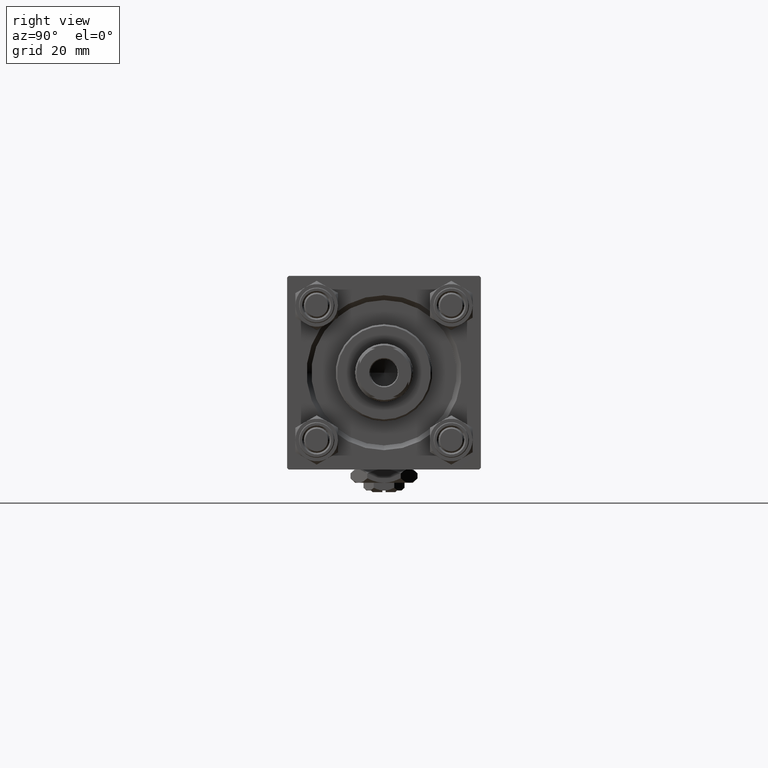
[diagram: clean part render]
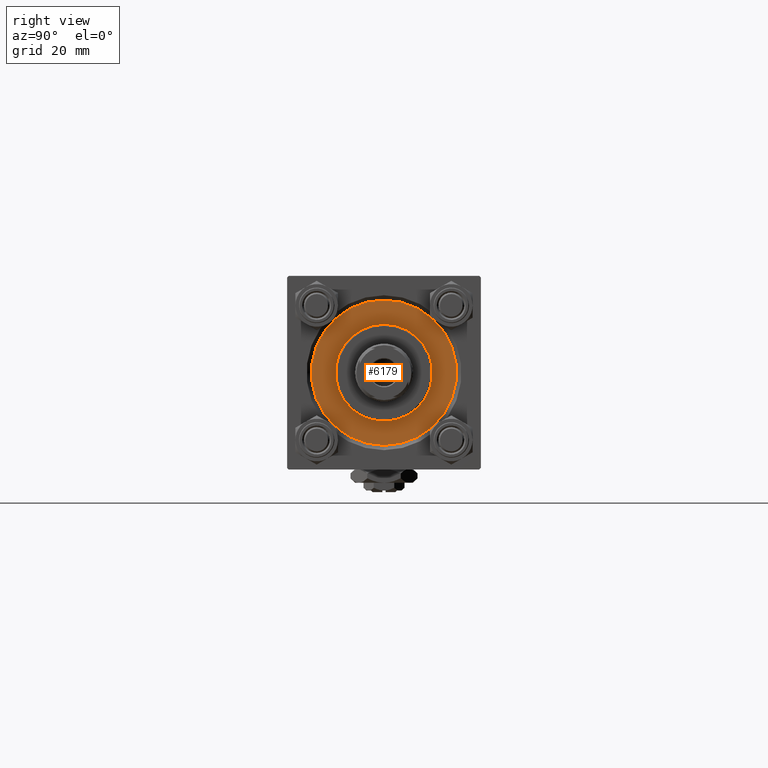
[diagram: same view with one face highlighted and labeled with its STEP entity id]
A machine part, right view. The second image highlights one B-rep face of the part: STEP entity #6179.
In plain terms, the highlighted planar face has unit normal (1, 0, -0).
Its self-contained STEP definition (entity closure, byte-faithful):
#2834 = CARTESIAN_POINT ( 'NONE',  ( -15.00000000000000000, 0.000000000000000000, 28.69999999999999929 ) ) ;
#3853 = FACE_BOUND ( 'NONE', #41126, .T. ) ;
#5925 = CARTESIAN_POINT ( 'NONE',  ( 0.000000000000000000, 0.000000000000000000, 28.69999999999999929 ) ) ;
#6040 = DIRECTION ( 'NONE',  ( 0.000000000000000000, 0.000000000000000000, 1.000000000000000000 ) ) ;
#6179 = ADVANCED_FACE ( 'NONE', ( #3853, #26712 ), #42731, .T. ) ;
#11819 = DIRECTION ( 'NONE',  ( 1.000000000000000000, 0.000000000000000000, 0.000000000000000000 ) ) ;
#14904 = DIRECTION ( 'NONE',  ( 0.000000000000000000, 0.000000000000000000, 1.000000000000000000 ) ) ;
#15096 = DIRECTION ( 'NONE',  ( 0.000000000000000000, 0.000000000000000000, 1.000000000000000000 ) ) ;
#15667 = VERTEX_POINT ( 'NONE', #41891 ) ;
#16475 = DIRECTION ( 'NONE',  ( 1.000000000000000000, 0.000000000000000000, 0.000000000000000000 ) ) ;
#17058 = CARTESIAN_POINT ( 'NONE',  ( 0.000000000000000000, 0.000000000000000000, 28.69999999999999929 ) ) ;
#18833 = CARTESIAN_POINT ( 'NONE',  ( 0.000000000000000000, 0.000000000000000000, 28.69999999999999929 ) ) ;
#19893 = CARTESIAN_POINT ( 'NONE',  ( 0.000000000000000000, 0.000000000000000000, 28.69999999999999929 ) ) ;
#19931 = VERTEX_POINT ( 'NONE', #25636 ) ;
#20686 = ORIENTED_EDGE ( 'NONE', *, *, #41378, .T. ) ;
#20986 = DIRECTION ( 'NONE',  ( 1.000000000000000000, 0.000000000000000000, 0.000000000000000000 ) ) ;
#20989 = CIRCLE ( 'NONE', #21833, 22.50000000000000355 ) ;
#20998 = EDGE_CURVE ( 'NONE', #15667, #32780, #50877, .T. ) ;
#21833 = AXIS2_PLACEMENT_3D ( 'NONE', #5925, #15096, #42666 ) ;
#24201 = AXIS2_PLACEMENT_3D ( 'NONE', #19893, #47723, #16475 ) ;
#25636 = CARTESIAN_POINT ( 'NONE',  ( 22.50000000000000355, 2.755455298081545172E-15, 28.69999999999999929 ) ) ;
#26712 = FACE_OUTER_BOUND ( 'NONE', #50865, .T. ) ;
#29947 = ORIENTED_EDGE ( 'NONE', *, *, #49157, .T. ) ;
#30920 = DIRECTION ( 'NONE',  ( 1.000000000000000000, 0.000000000000000000, -0.000000000000000000 ) ) ;
#31771 = CIRCLE ( 'NONE', #24201, 15.00000000000000000 ) ;
#32780 = VERTEX_POINT ( 'NONE', #2834 ) ;
#35475 = AXIS2_PLACEMENT_3D ( 'NONE', #18833, #14904, #30920 ) ;
#37429 = AXIS2_PLACEMENT_3D ( 'NONE', #17058, #6040, #20986 ) ;
#39898 = CARTESIAN_POINT ( 'NONE',  ( 0.000000000000000000, 0.000000000000000000, 28.69999999999999929 ) ) ;
#40492 = ORIENTED_EDGE ( 'NONE', *, *, #44442, .F. ) ;
#41126 = EDGE_LOOP ( 'NONE', ( #40492, #47742 ) ) ;
#41378 = EDGE_CURVE ( 'NONE', #44575, #19931, #42109, .T. ) ;
#41891 = CARTESIAN_POINT ( 'NONE',  ( 15.00000000000000000, 1.836970198721029589E-15, 28.69999999999999929 ) ) ;
#41921 = CARTESIAN_POINT ( 'NONE',  ( -22.50000000000000355, 0.000000000000000000, 28.69999999999999929 ) ) ;
#42109 = CIRCLE ( 'NONE', #45434, 22.50000000000000355 ) ;
#42666 = DIRECTION ( 'NONE',  ( 1.000000000000000000, 0.000000000000000000, 0.000000000000000000 ) ) ;
#42731 = PLANE ( 'NONE',  #35475 ) ;
#44442 = EDGE_CURVE ( 'NONE', #32780, #15667, #31771, .T. ) ;
#44575 = VERTEX_POINT ( 'NONE', #41921 ) ;
#45434 = AXIS2_PLACEMENT_3D ( 'NONE', #39898, #48549, #11819 ) ;
#47723 = DIRECTION ( 'NONE',  ( 0.000000000000000000, 0.000000000000000000, 1.000000000000000000 ) ) ;
#47742 = ORIENTED_EDGE ( 'NONE', *, *, #20998, .F. ) ;
#48549 = DIRECTION ( 'NONE',  ( 0.000000000000000000, 0.000000000000000000, 1.000000000000000000 ) ) ;
#49157 = EDGE_CURVE ( 'NONE', #19931, #44575, #20989, .T. ) ;
#50865 = EDGE_LOOP ( 'NONE', ( #20686, #29947 ) ) ;
#50877 = CIRCLE ( 'NONE', #37429, 15.00000000000000000 ) ;